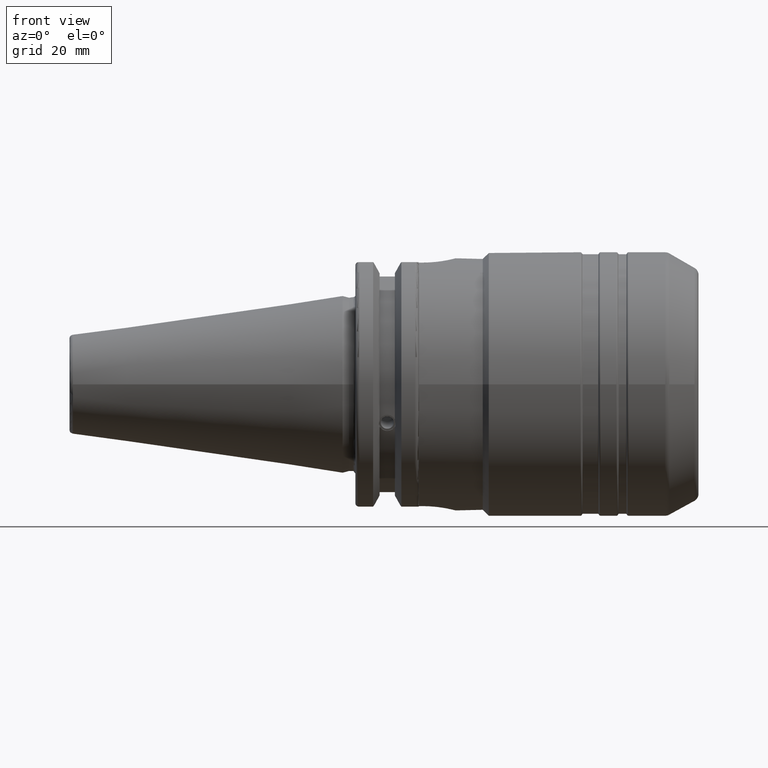
[diagram: clean part render]
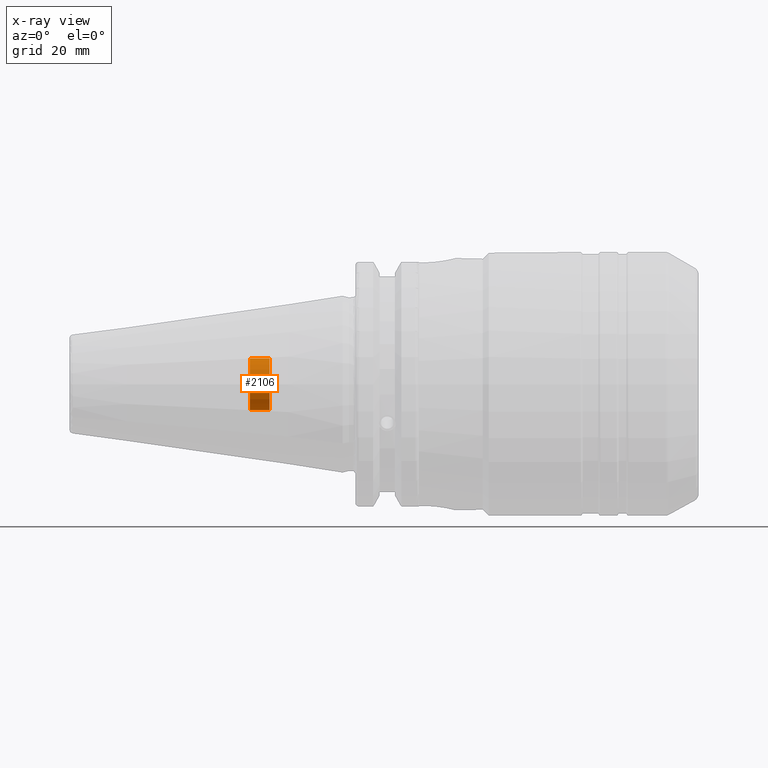
[diagram: x-ray — body ghosted, one internal face saturated and labeled with its STEP entity id]
A machine part, front view, then the same camera in x-ray: the body is ghosted and one INTERNAL B-rep face — a face not visible from any outside direction — is saturated and labeled: STEP entity #2106.
In plain terms, the highlighted cylindrical surface (bore or boss wall) has radius 6.5 mm, axis along (-1, 0, 0).
Its self-contained STEP definition (entity closure, byte-faithful):
#153=CYLINDRICAL_SURFACE('',#2253,6.5);
#194=FACE_OUTER_BOUND('',#302,.T.);
#302=EDGE_LOOP('',(#1441,#1442,#1443,#1444,#1445));
#435=LINE('',#3353,#539);
#539=VECTOR('',#2607,6.5);
#641=CIRCLE('',#2251,6.5);
#642=CIRCLE('',#2252,6.5);
#643=CIRCLE('',#2254,6.5);
#829=VERTEX_POINT('',#3345);
#830=VERTEX_POINT('',#3346);
#831=VERTEX_POINT('',#3351);
#1080=EDGE_CURVE('',#829,#830,#641,.T.);
#1082=EDGE_CURVE('',#830,#829,#642,.T.);
#1083=EDGE_CURVE('',#831,#831,#643,.T.);
#1084=EDGE_CURVE('',#831,#830,#435,.T.);
#1441=ORIENTED_EDGE('',*,*,#1083,.F.);
#1442=ORIENTED_EDGE('',*,*,#1084,.T.);
#1443=ORIENTED_EDGE('',*,*,#1080,.F.);
#1444=ORIENTED_EDGE('',*,*,#1082,.F.);
#1445=ORIENTED_EDGE('',*,*,#1084,.F.);
#2106=ADVANCED_FACE('',(#194),#153,.F.);
#2251=AXIS2_PLACEMENT_3D('',#3347,#2598,#2599);
#2252=AXIS2_PLACEMENT_3D('',#3349,#2601,#2602);
#2253=AXIS2_PLACEMENT_3D('',#3350,#2603,#2604);
#2254=AXIS2_PLACEMENT_3D('',#3352,#2605,#2606);
#2598=DIRECTION('center_axis',(-1.,0.,0.));
#2599=DIRECTION('ref_axis',(0.,0.,1.));
#2601=DIRECTION('center_axis',(-1.,0.,0.));
#2602=DIRECTION('ref_axis',(0.,0.,1.));
#2603=DIRECTION('center_axis',(-1.,0.,0.));
#2604=DIRECTION('ref_axis',(0.,0.,1.));
#2605=DIRECTION('center_axis',(1.,0.,0.));
#2606=DIRECTION('ref_axis',(0.,0.,1.));
#2607=DIRECTION('',(1.,0.,0.));
#3345=CARTESIAN_POINT('',(-18.25,0.,6.5));
#3346=CARTESIAN_POINT('',(-18.25,-7.9602041944578E-16,-6.5));
#3347=CARTESIAN_POINT('Origin',(-18.25,0.,0.));
#3349=CARTESIAN_POINT('Origin',(-18.25,0.,0.));
#3350=CARTESIAN_POINT('Origin',(-43.25,0.,0.));
#3351=CARTESIAN_POINT('',(-23.1340939865896,7.9602041944578E-16,-6.5));
#3352=CARTESIAN_POINT('Origin',(-23.1340939865896,0.,0.));
#3353=CARTESIAN_POINT('',(-43.25,-7.9602041944578E-16,-6.5));